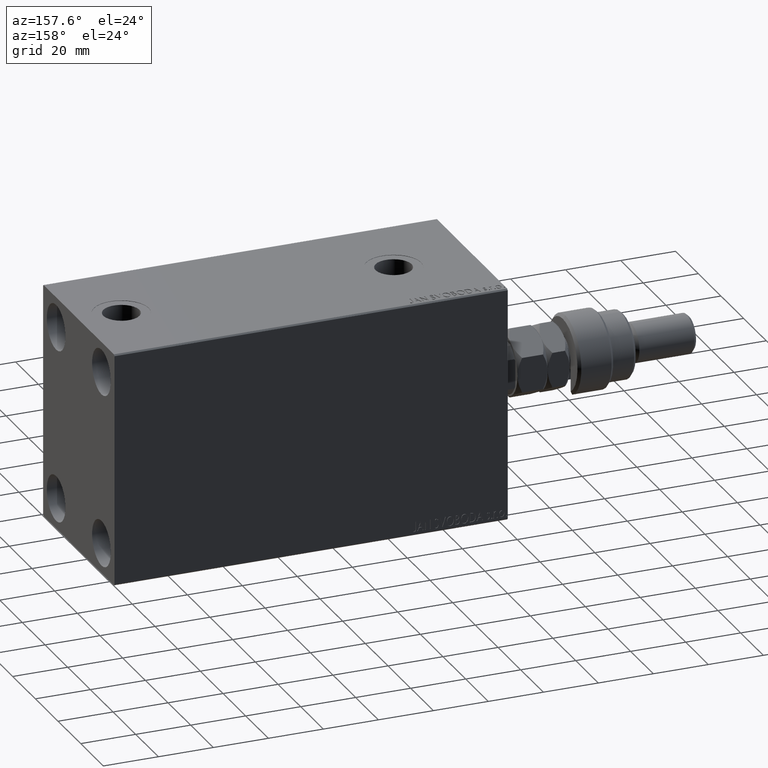
[diagram: clean part render]
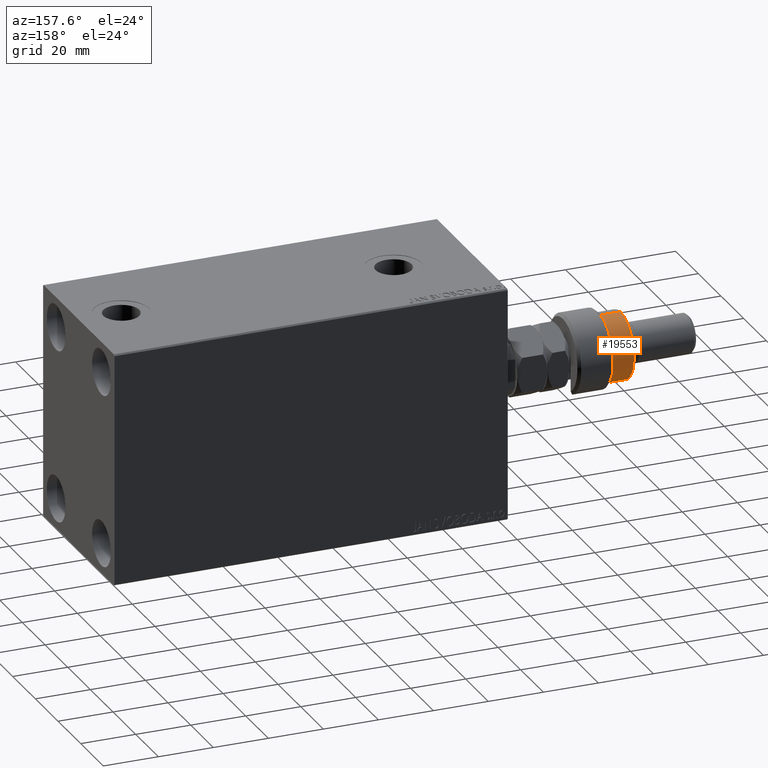
[diagram: same view with one face highlighted and labeled with its STEP entity id]
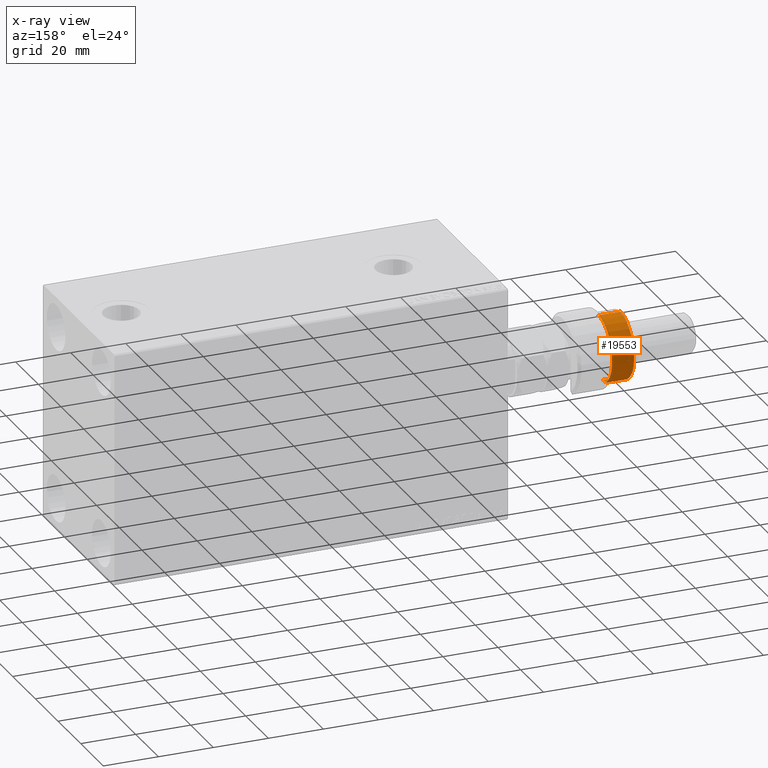
[diagram: x-ray of the same camera — body ghosted, the highlighted face saturated]
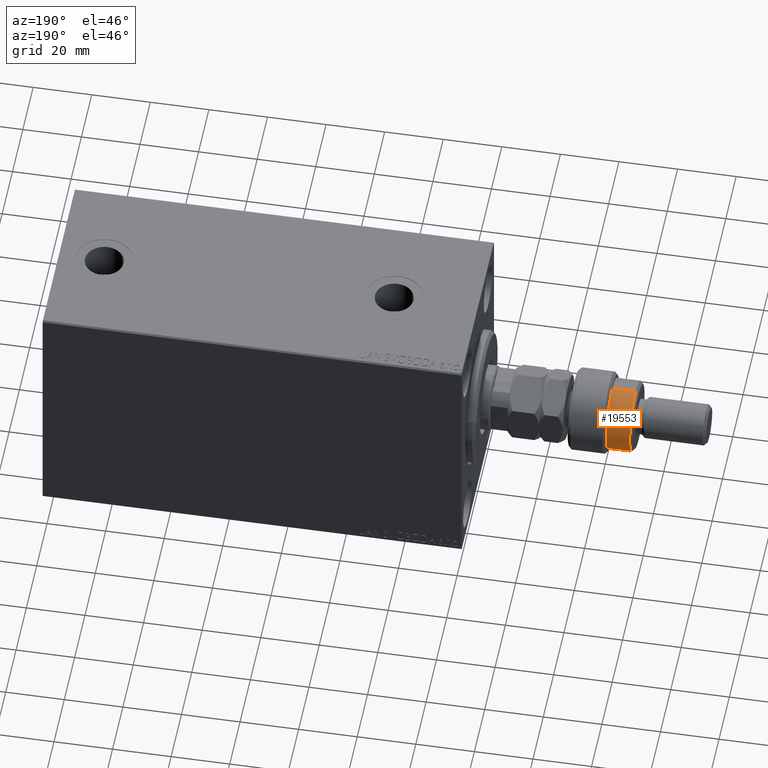
[diagram: same view with one face highlighted and labeled with its STEP entity id]
A machine part, auxiliary view. The second image highlights one B-rep face of the part: STEP entity #19553.
The next image is the same camera in x-ray: the body ghosted, the highlighted face saturated — about 0% of this face is hidden behind the body in this view.
A second angle (auxiliary view) of the same face is appended — the face is thin or edge-on in the first view.
In plain terms, the highlighted cylindrical surface (edge-blend (fillet) strip) has radius 12 mm, axis along (1, -0, -0).
Its self-contained STEP definition (entity closure, byte-faithful):
#1024 = CIRCLE ( 'NONE', #25231, 12.00000000000000178 ) ;
#1147 = VECTOR ( 'NONE', #37995, 1000.000000000000000 ) ;
#1717 = VERTEX_POINT ( 'NONE', #23923 ) ;
#1834 = VECTOR ( 'NONE', #7513, 1000.000000000000000 ) ;
#3166 = CARTESIAN_POINT ( 'NONE',  ( 12.00000000000000178, 1.469576158976824144E-15, 13.00000000000000000 ) ) ;
#3568 = ORIENTED_EDGE ( 'NONE', *, *, #6796, .F. ) ;
#3922 = DIRECTION ( 'NONE',  ( 1.000000000000000000, 0.000000000000000000, 0.000000000000000000 ) ) ;
#3927 = CARTESIAN_POINT ( 'NONE',  ( -10.39230484541326760, 6.000000000000000000, 22.00000000000000000 ) ) ;
#3953 = DIRECTION ( 'NONE',  ( -1.000000000000000000, 0.000000000000000000, 0.000000000000000000 ) ) ;
#5340 = CARTESIAN_POINT ( 'NONE',  ( 12.00000000000000178, 1.469576158976824144E-15, 20.99999999999999645 ) ) ;
#6036 = LINE ( 'NONE', #30902, #1147 ) ;
#6571 = EDGE_CURVE ( 'NONE', #38524, #46080, #32162, .T. ) ;
#6796 = EDGE_CURVE ( 'NONE', #1717, #27148, #6036, .T. ) ;
#7255 = DIRECTION ( 'NONE',  ( 0.000000000000000000, 0.000000000000000000, 1.000000000000000000 ) ) ;
#7513 = DIRECTION ( 'NONE',  ( -0.000000000000000000, -0.000000000000000000, -1.000000000000000000 ) ) ;
#7677 = CARTESIAN_POINT ( 'NONE',  ( -12.00000000000000178, 0.000000000000000000, 14.50000000000000000 ) ) ;
#10808 = DIRECTION ( 'NONE',  ( 0.000000000000000000, 0.000000000000000000, 1.000000000000000000 ) ) ;
#12289 = FACE_OUTER_BOUND ( 'NONE', #28511, .T. ) ;
#13203 = EDGE_CURVE ( 'NONE', #27148, #46850, #17221, .T. ) ;
#13599 = ORIENTED_EDGE ( 'NONE', *, *, #43475, .T. ) ;
#15429 = VECTOR ( 'NONE', #10808, 1000.000000000000000 ) ;
#17221 = CIRCLE ( 'NONE', #34566, 12.00000000000000178 ) ;
#17636 = ORIENTED_EDGE ( 'NONE', *, *, #13203, .F. ) ;
#18471 = CYLINDRICAL_SURFACE ( 'NONE', #27846, 12.00000000000000178 ) ;
#19553 = ADVANCED_FACE ( 'NONE', ( #12289 ), #18471, .T. ) ;
#19573 = CARTESIAN_POINT ( 'NONE',  ( -10.39230484541326582, 5.999999999999998224, 14.50000000000000000 ) ) ;
#21308 = CARTESIAN_POINT ( 'NONE',  ( 0.000000000000000000, 0.000000000000000000, 20.99999999999999645 ) ) ;
#21986 = ORIENTED_EDGE ( 'NONE', *, *, #6571, .T. ) ;
#22018 = CARTESIAN_POINT ( 'NONE',  ( 0.000000000000000000, 0.000000000000000000, 22.00000000000000000 ) ) ;
#23923 = CARTESIAN_POINT ( 'NONE',  ( -12.00000000000000178, 0.000000000000000000, 20.99999999999999645 ) ) ;
#24334 = ORIENTED_EDGE ( 'NONE', *, *, #41040, .T. ) ;
#24583 = CARTESIAN_POINT ( 'NONE',  ( 12.00000000000000178, 1.469576158976824144E-15, 22.00000000000000000 ) ) ;
#25231 = AXIS2_PLACEMENT_3D ( 'NONE', #21308, #35732, #26001 ) ;
#26001 = DIRECTION ( 'NONE',  ( 1.000000000000000000, 0.000000000000000000, 0.000000000000000000 ) ) ;
#26502 = DIRECTION ( 'NONE',  ( -1.000000000000000000, 0.000000000000000000, 0.000000000000000000 ) ) ;
#26666 = DIRECTION ( 'NONE',  ( 0.000000000000000000, 0.000000000000000000, -1.000000000000000000 ) ) ;
#27148 = VERTEX_POINT ( 'NONE', #7677 ) ;
#27846 = AXIS2_PLACEMENT_3D ( 'NONE', #22018, #44491, #26502 ) ;
#28511 = EDGE_LOOP ( 'NONE', ( #24334, #13599, #21986, #34787, #17636, #3568 ) ) ;
#30902 = CARTESIAN_POINT ( 'NONE',  ( -12.00000000000000178, 0.000000000000000000, 22.00000000000000000 ) ) ;
#32162 = CIRCLE ( 'NONE', #43495, 12.00000000000000178 ) ;
#33046 = LINE ( 'NONE', #3927, #15429 ) ;
#34566 = AXIS2_PLACEMENT_3D ( 'NONE', #36612, #26666, #3953 ) ;
#34787 = ORIENTED_EDGE ( 'NONE', *, *, #42066, .T. ) ;
#35659 = CARTESIAN_POINT ( 'NONE',  ( 0.000000000000000000, 0.000000000000000000, 13.00000000000000000 ) ) ;
#35732 = DIRECTION ( 'NONE',  ( 0.000000000000000000, 0.000000000000000000, -1.000000000000000000 ) ) ;
#36612 = CARTESIAN_POINT ( 'NONE',  ( 0.000000000000000000, 0.000000000000000000, 14.50000000000000000 ) ) ;
#37995 = DIRECTION ( 'NONE',  ( -0.000000000000000000, -0.000000000000000000, -1.000000000000000000 ) ) ;
#38524 = VERTEX_POINT ( 'NONE', #3166 ) ;
#39270 = VERTEX_POINT ( 'NONE', #5340 ) ;
#41040 = EDGE_CURVE ( 'NONE', #1717, #39270, #1024, .T. ) ;
#42066 = EDGE_CURVE ( 'NONE', #46080, #46850, #33046, .T. ) ;
#43034 = CARTESIAN_POINT ( 'NONE',  ( -10.39230484541326760, 6.000000000000000000, 13.00000000000000000 ) ) ;
#43475 = EDGE_CURVE ( 'NONE', #39270, #38524, #43497, .T. ) ;
#43495 = AXIS2_PLACEMENT_3D ( 'NONE', #35659, #7255, #3922 ) ;
#43497 = LINE ( 'NONE', #24583, #1834 ) ;
#44491 = DIRECTION ( 'NONE',  ( -0.000000000000000000, -0.000000000000000000, -1.000000000000000000 ) ) ;
#46080 = VERTEX_POINT ( 'NONE', #43034 ) ;
#46850 = VERTEX_POINT ( 'NONE', #19573 ) ;